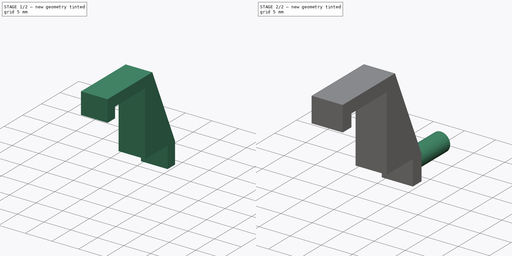
[diagram: build sequence overview — one tinted view per stage of 2, left to right]
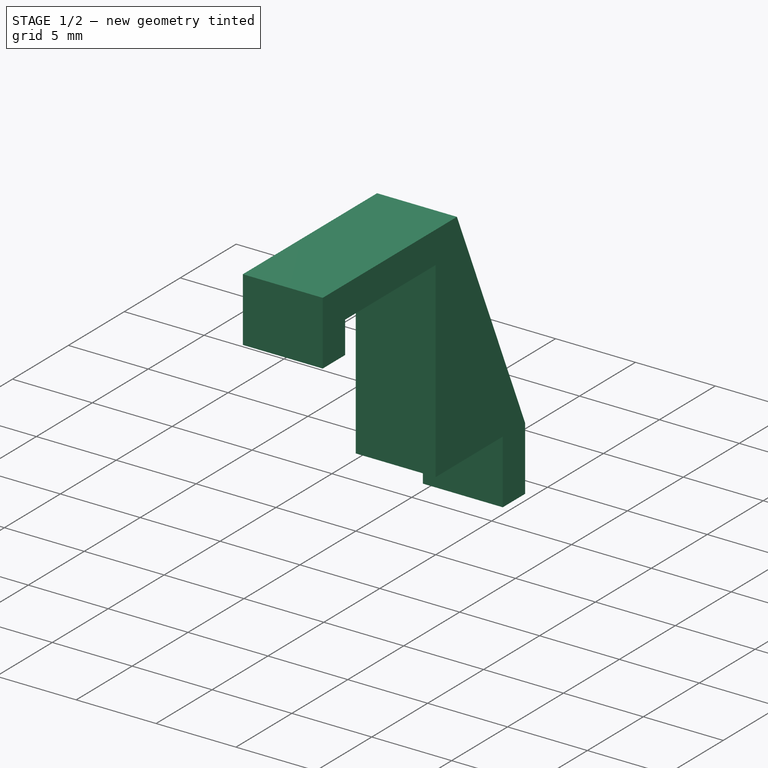
[diagram: stage 1 of 2 — iso view after this stage's code; geometry added in this stage tinted green]
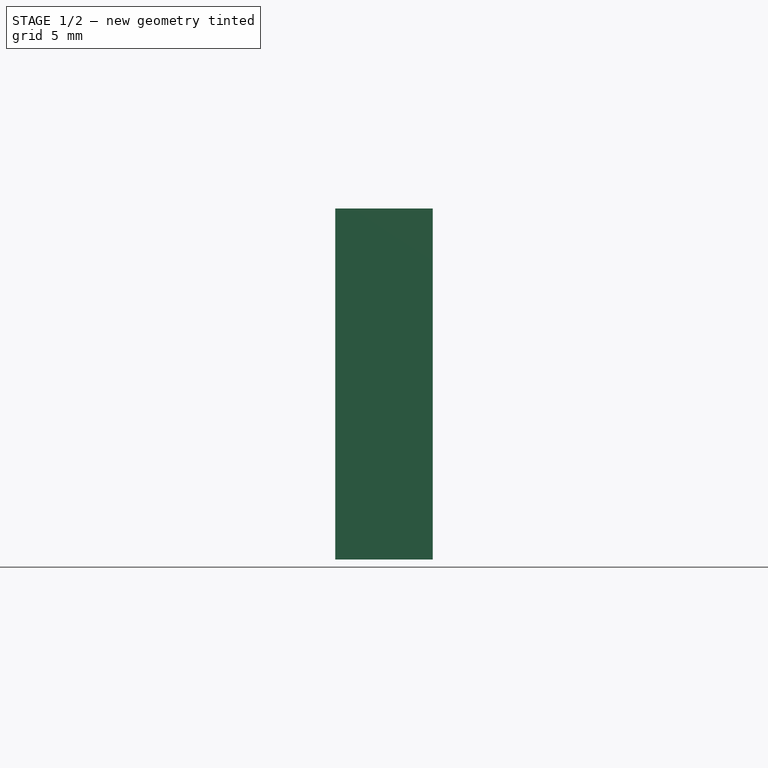
[diagram: stage 1 of 2 — front view after this stage's code; geometry added in this stage tinted green]
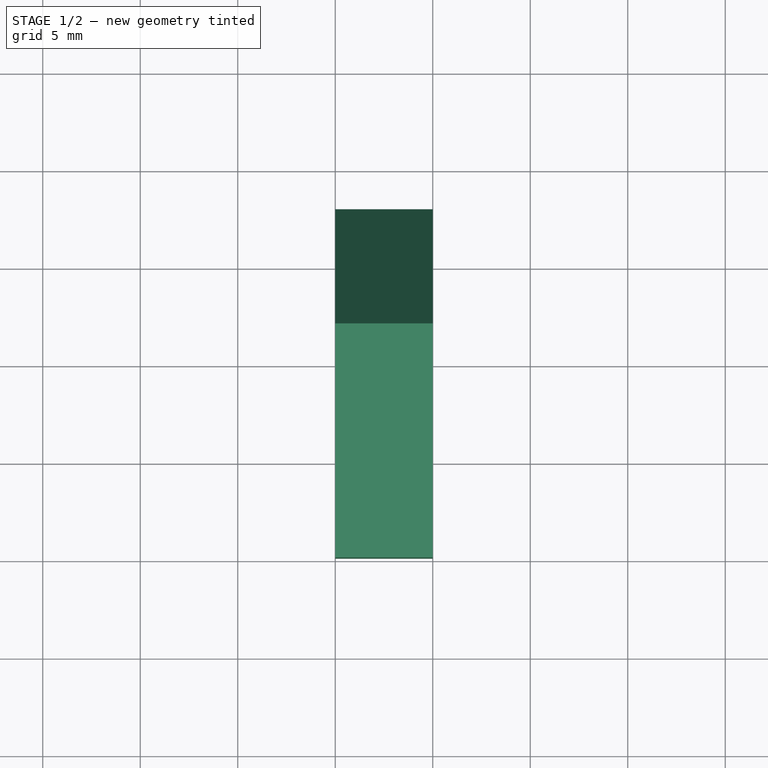
[diagram: stage 1 of 2 — top view after this stage's code; geometry added in this stage tinted green]
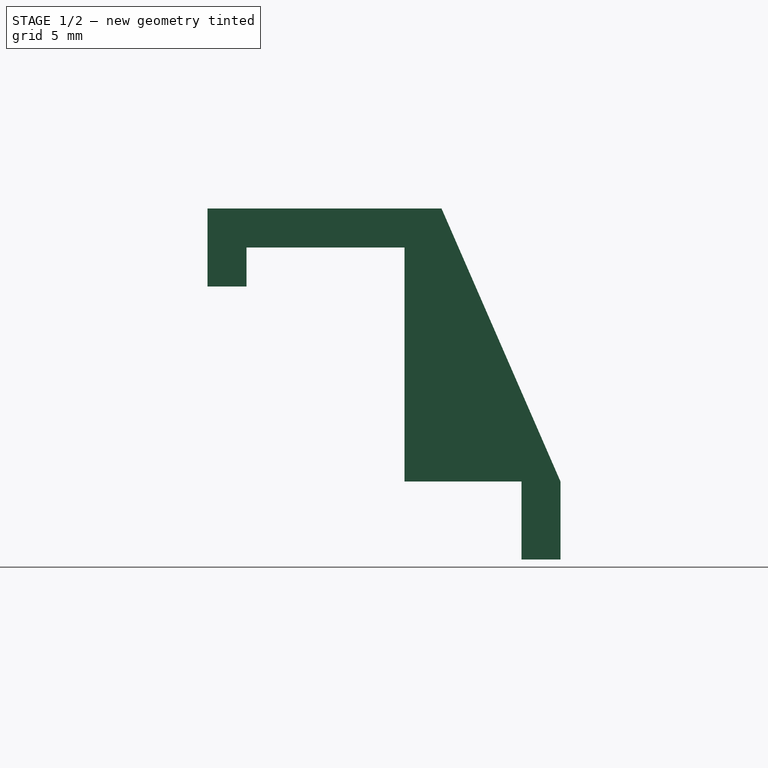
[diagram: stage 1 of 2 — right view after this stage's code; geometry added in this stage tinted green]
FCSTD DOCUMENT  (FreeCAD 0.19R24291 (Git))
Label: rohrhalterVERT
License: All rights reserved
LicenseURL: http://en.wikipedia.org/wiki/All_rights_reserved
objects: Sketcher::SketchObject×2, PartDesign::Pad×2, PartDesign::Body×1
note: 7 computed .brp shape members not serialized (recipe doc carries the construction recipe); baked Part::Feature solids carry a one-line shape summary decoded from their .brp

FEATURE [Sketcher::SketchObject] Sketch
  FullyConstrained = true
  MapMode = 5
  Placement = pos=(0,0,0) rot=(0.57735,0.57735,0.57735;2.0944rad)
  Support = -> [YZ_Plane]
  sketch-geometry (11):
    g0: LineSegment StartX=-10.1 StartY=0 StartZ=0 EndX=-8.1 EndY=0 EndZ=0
    g1: LineSegment StartX=-8.1 StartY=0 StartZ=0 EndX=-8.1 EndY=2 EndZ=0
    g2: LineSegment StartX=-8.1 StartY=2 StartZ=0 EndX=0 EndY=2 EndZ=0
    g3: LineSegment StartX=0 StartY=2 StartZ=0 EndX=0 EndY=-10 EndZ=0
    g4: LineSegment StartX=1.9 StartY=4 StartZ=0 EndX=-10.1 EndY=4 EndZ=0
    g5: LineSegment StartX=-10.1 StartY=4 StartZ=0 EndX=-10.1 EndY=0 EndZ=0
    g6: LineSegment StartX=8 StartY=-10 StartZ=0 EndX=8 EndY=-14 EndZ=0
    g7: LineSegment StartX=8 StartY=-14 StartZ=0 EndX=6 EndY=-14 EndZ=0
    g8: LineSegment StartX=6 StartY=-14 StartZ=0 EndX=6 EndY=-10 EndZ=0
    g9: LineSegment StartX=6 StartY=-10 StartZ=0 EndX=0 EndY=-10 EndZ=0
    g10: LineSegment StartX=1.9 StartY=4 StartZ=0 EndX=8 EndY=-10 EndZ=0
  constraints (33):
    c: PointOnObject(g0,g-1)
    c: PointOnObject(g0,g-1)
    c: Coincident(g0,g1)
    c: Vertical(g1)
    c: Coincident(g1,g2)
    c: PointOnObject(g2,g-2)
    c: Horizontal(g2)
    c: Coincident(g2,g3)
    c: PointOnObject(g3,g-2)
    c: Horizontal(g4)
    c: Coincident(g4,g5)
    c: Coincident(g5,g0)
    c: Vertical(g5)
    c: Vertical(g6)
    c: Horizontal(g7)
    c: Coincident(g7,g8)
    c: Vertical(g8)
    c: Coincident(g8,g9)
    c: Coincident(g9,g3)
    c: DistanceY(g6,g4) = 18
    c: Coincident(g10,g4)
    c: Coincident(g7,g6)
    c: Horizontal(g9)
    c: DistanceX(g0,g0) = 2
    c: DistanceY(g1,g4) = 2
    c: DistanceY(g0,g1) = 2
    c: Coincident(g10,g6)
    c: DistanceX(g7,g6) = 2
    c: Equal(g6,g8)
    c: DistanceX(g1,g2) = 8.1
    c: DistanceY(g3,g2) = 12
    c: DistanceX(g3,g8) = 6
    c: DistanceX(g4,g4) = 12
FEATURE [PartDesign::Pad] Pad
  Direction = (1,1,1)
  Length = 5
  Length2 = 100
  Placement = pos=(0,0,0) rot=(0.57735,0.57735,0.57735;2.0944rad)
  Profile = -> Sketch
  Refine = true
  Type = 0
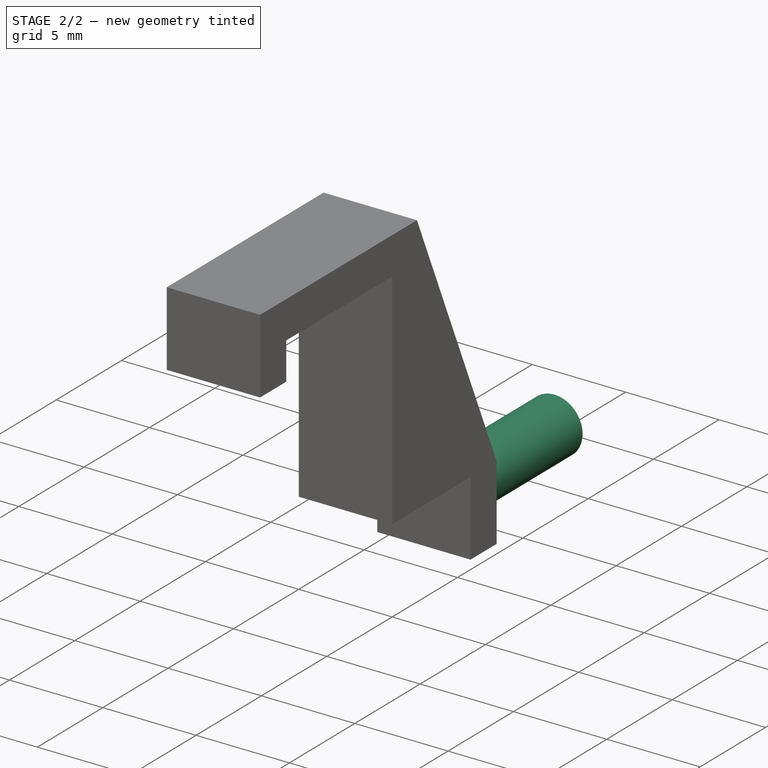
[diagram: stage 2 of 2 — iso view after this stage's code; geometry added in this stage tinted green]
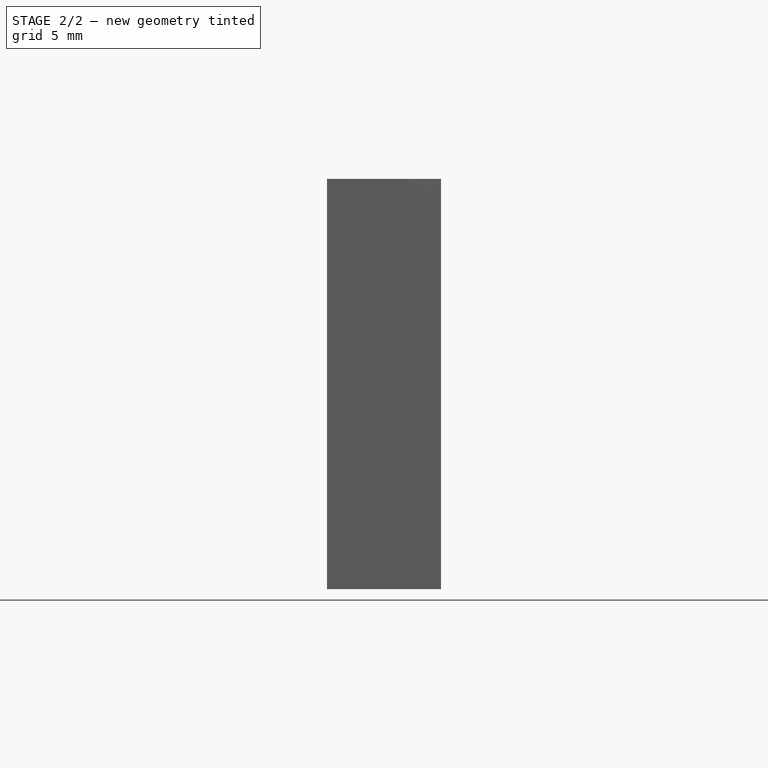
[diagram: stage 2 of 2 — front view after this stage's code; geometry added in this stage tinted green]
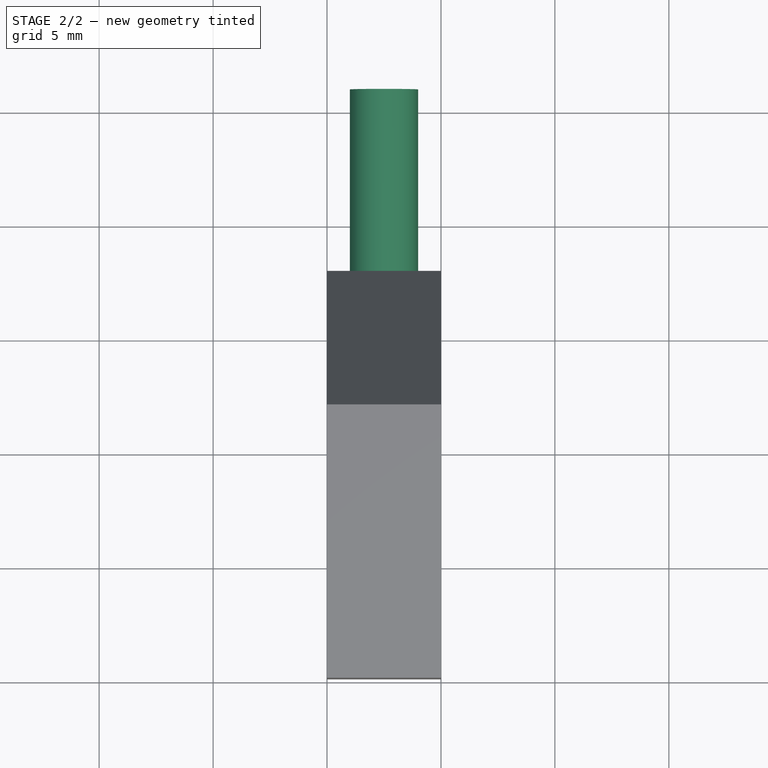
[diagram: stage 2 of 2 — top view after this stage's code; geometry added in this stage tinted green]
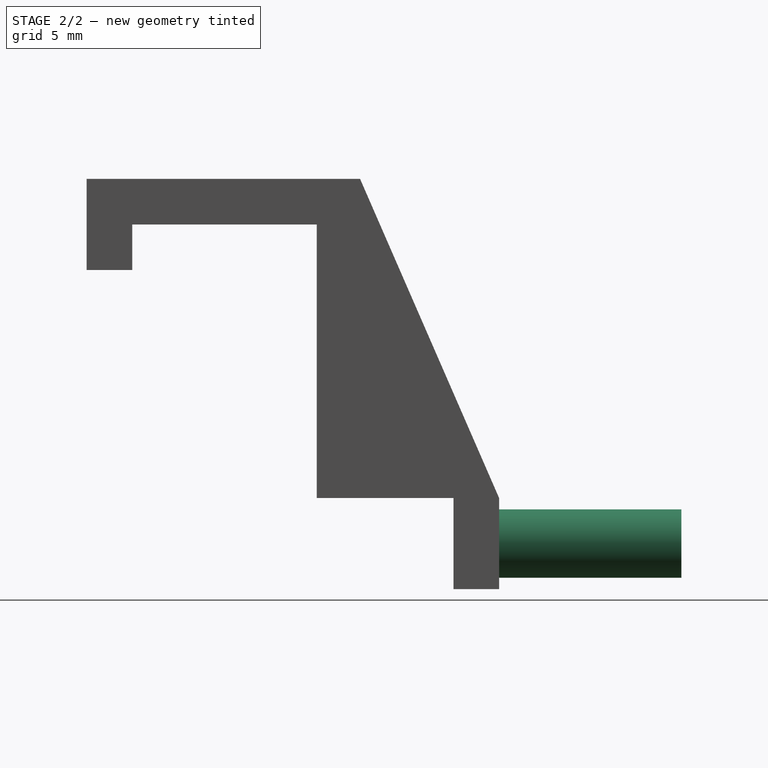
[diagram: stage 2 of 2 — right view after this stage's code; geometry added in this stage tinted green]
FEATURE [Sketcher::SketchObject] Sketch001
  FullyConstrained = true
  MapMode = 5
  Placement = pos=(3.5e-15,8,-1.8e-15) rot=(0.57735,0.57735,0.57735;4.18879rad)
  Support = -> [Pad]
  sketch-geometry (1):
    g0: Circle CenterX=-12 CenterY=2.5 CenterZ=0 NormalX=0 NormalY=0 NormalZ=1 AngleXU=0 Radius=1.5
  constraints (3):
    c: Diameter(g0) = 3
    c: DistanceY(g-1,g0) = 2.5
    c: DistanceX(g0,g-1) = 12
FEATURE [PartDesign::Pad] Pad001
  BaseFeature = -> Pad
  Direction = (1,1,1)
  Length = 8
  Length2 = 100
  Placement = pos=(0,0,0) rot=(0.57735,0.57735,0.57735;2.0944rad)
  Profile = -> Sketch001
  Refine = true
  Type = 0
FEATURE [PartDesign::Body] Body
  Group = -> [Sketch,Pad,Sketch001,Pad001]
  Origin = -> Origin
  Tip = -> Pad001
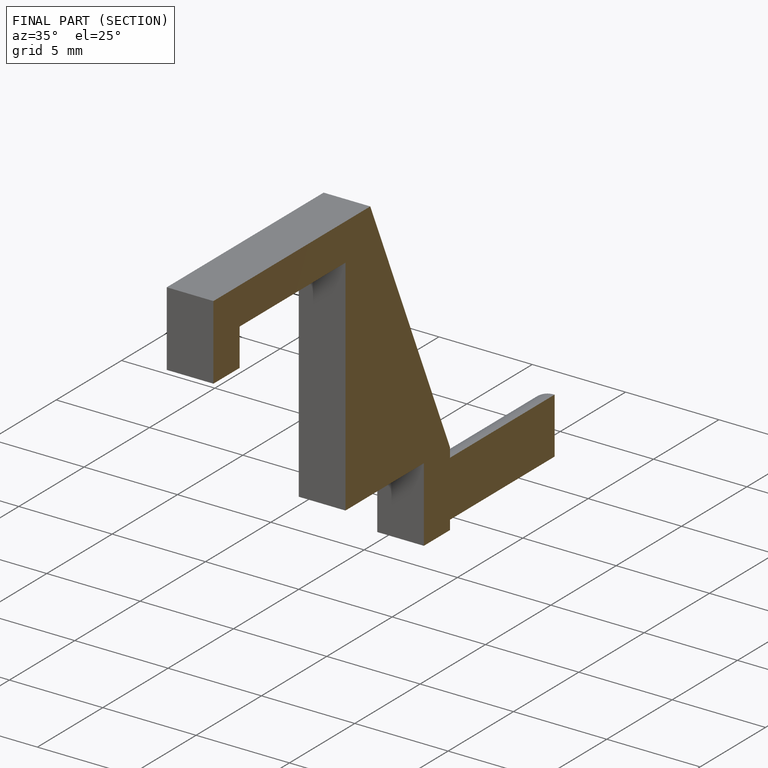
[diagram: finished part — half-section view (interior)]
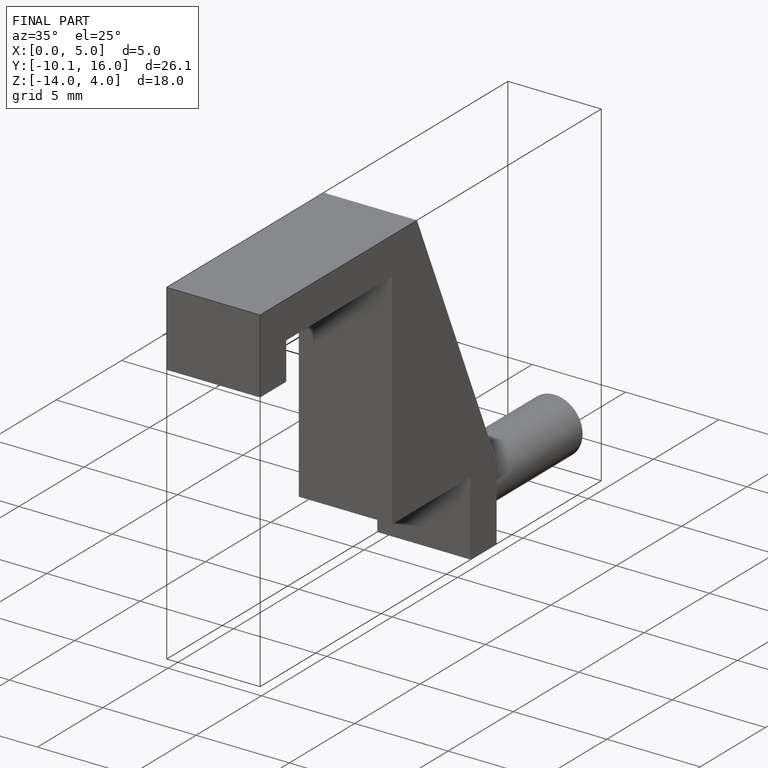
[diagram: finished part — iso view with bounding-box wireframe]
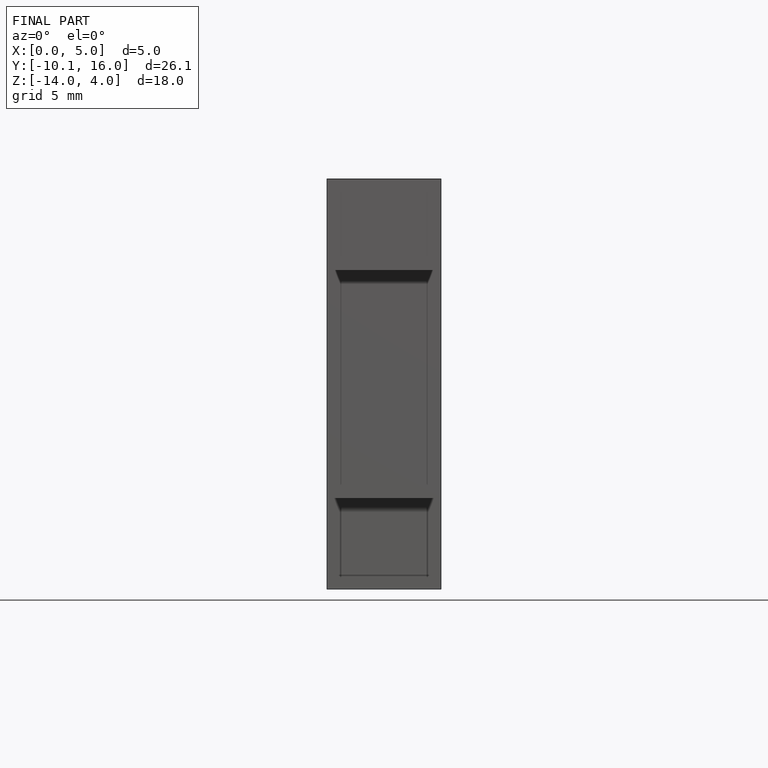
[diagram: finished part — front view with bounding-box wireframe]
